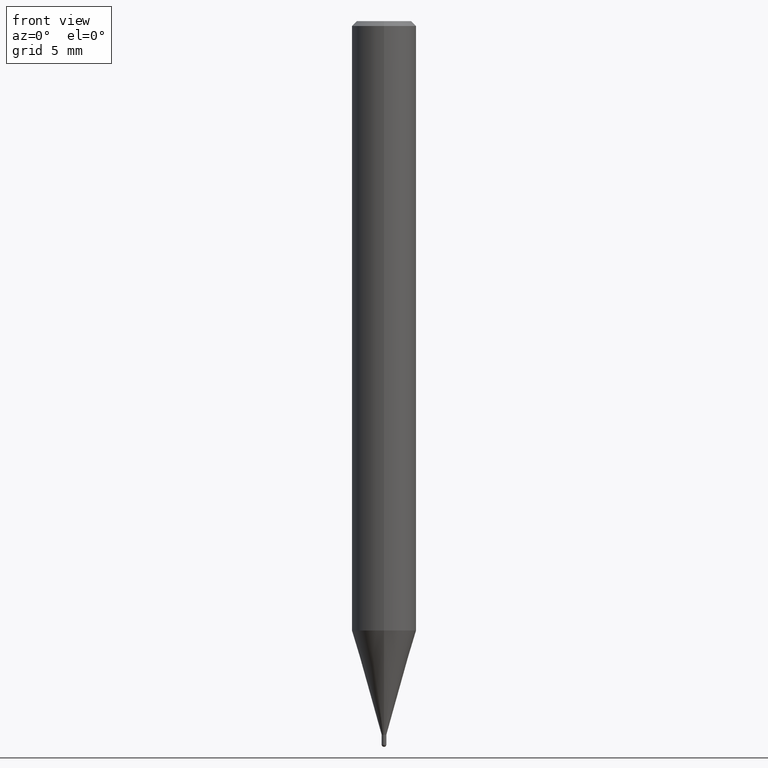
[diagram: clean part render]
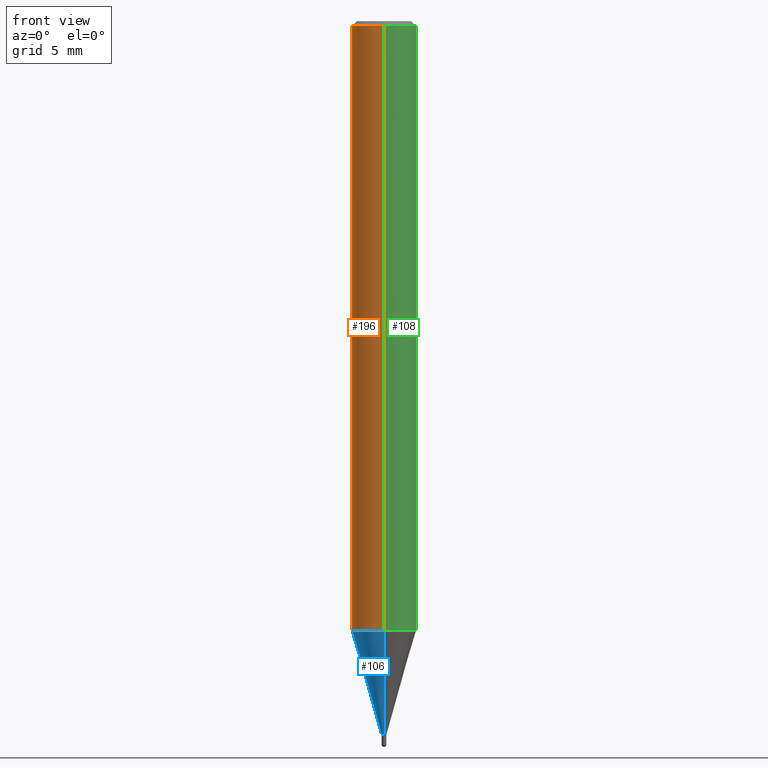
[diagram: same view with three faces highlighted in distinct colors, each labeled with its STEP entity id]
A machine part, front view with three faces highlighted in distinct colors.
Their STEP definitions:

[orange] entity #196 — the highlighted cylindrical surface (edge-blend (fillet) strip) has radius 2 mm, axis along (-0, -0, 1).
#98=EDGE_CURVE('',#168,#120,#239,.T.);
#120=VERTEX_POINT('',#263);
#138=EDGE_CURVE('',#176,#180,#284,.T.);
#144=EDGE_CURVE('',#120,#176,#291,.T.);
#168=VERTEX_POINT('',#318);
#176=VERTEX_POINT('',#326);
#180=VERTEX_POINT('',#330);
#182=EDGE_CURVE('',#168,#180,#332,.T.);
#196=ADVANCED_FACE('',(#350),#351,.T.);
#239=LINE('',#391,#392);
#263=CARTESIAN_POINT('',(2.44921270764475E-016,-2.0,-0.299999999999997));
#284=LINE('',#449,#450);
#291=CIRCLE('',#459,2.0);
#318=CARTESIAN_POINT('',(2.44921270764475E-016,-2.0,-37.781));
#326=CARTESIAN_POINT('',(0.0,2.0,-0.299999999999997));
#330=CARTESIAN_POINT('',(0.0,2.0,-37.781));
#332=CIRCLE('',#513,2.0);
#350=FACE_OUTER_BOUND('',#533,.T.);
#351=CYLINDRICAL_SURFACE('',#534,2.0);
#391=CARTESIAN_POINT('',(2.44921270764475E-016,-2.0,-19.0405));
#392=VECTOR('',#561,1.0);
#449=CARTESIAN_POINT('',(-2.44921270764475E-016,2.0,-19.0405));
#450=VECTOR('',#611,1.0);
#459=AXIS2_PLACEMENT_3D('',#623,#624,#625);
#513=AXIS2_PLACEMENT_3D('',#669,#670,#671);
#533=EDGE_LOOP('',(#701,#702,#703,#704));
#534=AXIS2_PLACEMENT_3D('',#705,#706,#707);
#561=DIRECTION('',(-0.0,-0.0,1.0));
#611=DIRECTION('',(0.0,0.0,-1.0));
#623=CARTESIAN_POINT('',(0.0,0.0,-0.299999999999997));
#624=DIRECTION('',(0.0,0.0,-1.0));
#625=DIRECTION('',(0.0,1.0,0.0));
#669=CARTESIAN_POINT('',(0.0,0.0,-37.781));
#670=DIRECTION('',(0.0,0.0,-1.0));
#671=DIRECTION('',(0.0,1.0,0.0));
#701=ORIENTED_EDGE('',*,*,#138,.T.);
#702=ORIENTED_EDGE('',*,*,#182,.F.);
#703=ORIENTED_EDGE('',*,*,#98,.T.);
#704=ORIENTED_EDGE('',*,*,#144,.T.);
#705=CARTESIAN_POINT('',(0.0,0.0,-19.0405));
#706=DIRECTION('',(-0.0,-0.0,1.0));
#707=DIRECTION('',(0.0,1.0,0.0));

[blue] entity #106 — the highlighted conical surface has half-angle 16 deg.
#104=VERTEX_POINT('',#245);
#106=ADVANCED_FACE('',(#247),#248,.T.);
#114=VERTEX_POINT('',#257);
#116=EDGE_CURVE('',#132,#212,#259,.T.);
#122=EDGE_CURVE('',#104,#114,#265,.T.);
#132=VERTEX_POINT('',#277);
#160=EDGE_CURVE('',#212,#104,#309,.T.);
#192=EDGE_CURVE('',#132,#114,#346,.T.);
#212=VERTEX_POINT('',#370);
#245=CARTESIAN_POINT('',(0.0,1.99995,-37.781));
#247=FACE_OUTER_BOUND('',#401,.T.);
#248=CONICAL_SURFACE('',#402,1.07245,0.279258979430111);
#257=CARTESIAN_POINT('',(0.0,0.14495,-44.25));
#259=LINE('',#417,#418);
#265=LINE('',#425,#426);
#277=CARTESIAN_POINT('',(1.77506690986553E-017,-0.14495,-44.25));
#309=CIRCLE('',#483,1.99995);
#346=CIRCLE('',#528,0.14495);
#370=CARTESIAN_POINT('',(2.44915147732706E-016,-1.99995,-37.781));
#401=EDGE_LOOP('',(#566,#567,#568,#569));
#402=AXIS2_PLACEMENT_3D('',#570,#571,#572);
#417=CARTESIAN_POINT('',(1.31332908415681E-016,-1.07245,-41.0155));
#418=VECTOR('',#585,1.0);
#425=CARTESIAN_POINT('',(-1.31332908415681E-016,1.07245,-41.0155));
#426=VECTOR('',#586,1.0);
#483=AXIS2_PLACEMENT_3D('',#645,#646,#647);
#528=AXIS2_PLACEMENT_3D('',#694,#695,#696);
#566=ORIENTED_EDGE('',*,*,#122,.T.);
#567=ORIENTED_EDGE('',*,*,#192,.F.);
#568=ORIENTED_EDGE('',*,*,#116,.T.);
#569=ORIENTED_EDGE('',*,*,#160,.T.);
#570=CARTESIAN_POINT('',(0.0,0.0,-41.0155));
#571=DIRECTION('',(-0.0,-0.0,1.0));
#572=DIRECTION('',(0.0,1.0,0.0));
#585=DIRECTION('',(3.37554672384358E-017,-0.275643410905672,0.961259959648943));
#586=DIRECTION('',(3.37554672384358E-017,-0.275643410905672,-0.961259959648943));
#645=CARTESIAN_POINT('',(0.0,0.0,-37.781));
#646=DIRECTION('',(0.0,0.0,-1.0));
#647=DIRECTION('',(0.0,1.0,0.0));
#694=CARTESIAN_POINT('',(0.0,0.0,-44.25));
#695=DIRECTION('',(0.0,0.0,-1.0));
#696=DIRECTION('',(0.0,1.0,0.0));

[green] entity #108 — the highlighted cylindrical surface (edge-blend (fillet) strip) has radius 2 mm, axis along (-0, -0, 1).
#98=EDGE_CURVE('',#168,#120,#239,.T.);
#108=ADVANCED_FACE('',(#250),#251,.T.);
#120=VERTEX_POINT('',#263);
#138=EDGE_CURVE('',#176,#180,#284,.T.);
#168=VERTEX_POINT('',#318);
#172=EDGE_CURVE('',#180,#168,#322,.T.);
#176=VERTEX_POINT('',#326);
#178=EDGE_CURVE('',#176,#120,#328,.T.);
#180=VERTEX_POINT('',#330);
#239=LINE('',#391,#392);
#250=FACE_OUTER_BOUND('',#404,.T.);
#251=CYLINDRICAL_SURFACE('',#405,2.0);
#263=CARTESIAN_POINT('',(2.44921270764475E-016,-2.0,-0.299999999999997));
#284=LINE('',#449,#450);
#318=CARTESIAN_POINT('',(2.44921270764475E-016,-2.0,-37.781));
#322=CIRCLE('',#500,2.0);
#326=CARTESIAN_POINT('',(0.0,2.0,-0.299999999999997));
#328=CIRCLE('',#508,2.0);
#330=CARTESIAN_POINT('',(0.0,2.0,-37.781));
#391=CARTESIAN_POINT('',(2.44921270764475E-016,-2.0,-19.0405));
#392=VECTOR('',#561,1.0);
#404=EDGE_LOOP('',(#574,#575,#576,#577));
#405=AXIS2_PLACEMENT_3D('',#578,#579,#580);
#449=CARTESIAN_POINT('',(-2.44921270764475E-016,2.0,-19.0405));
#450=VECTOR('',#611,1.0);
#500=AXIS2_PLACEMENT_3D('',#660,#661,#662);
#508=AXIS2_PLACEMENT_3D('',#666,#667,#668);
#561=DIRECTION('',(-0.0,-0.0,1.0));
#574=ORIENTED_EDGE('',*,*,#138,.F.);
#575=ORIENTED_EDGE('',*,*,#178,.T.);
#576=ORIENTED_EDGE('',*,*,#98,.F.);
#577=ORIENTED_EDGE('',*,*,#172,.F.);
#578=CARTESIAN_POINT('',(0.0,0.0,-19.0405));
#579=DIRECTION('',(-0.0,-0.0,1.0));
#580=DIRECTION('',(0.0,1.0,0.0));
#611=DIRECTION('',(0.0,0.0,-1.0));
#660=CARTESIAN_POINT('',(0.0,0.0,-37.781));
#661=DIRECTION('',(0.0,0.0,-1.0));
#662=DIRECTION('',(0.0,1.0,0.0));
#666=CARTESIAN_POINT('',(0.0,0.0,-0.299999999999997));
#667=DIRECTION('',(0.0,0.0,-1.0));
#668=DIRECTION('',(0.0,1.0,0.0));